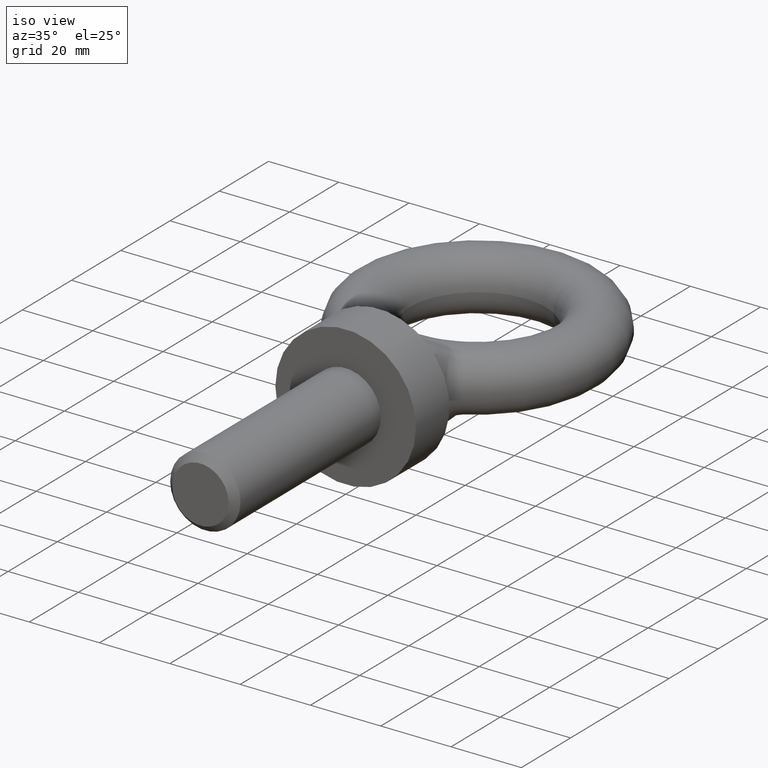
[diagram: clean part render]
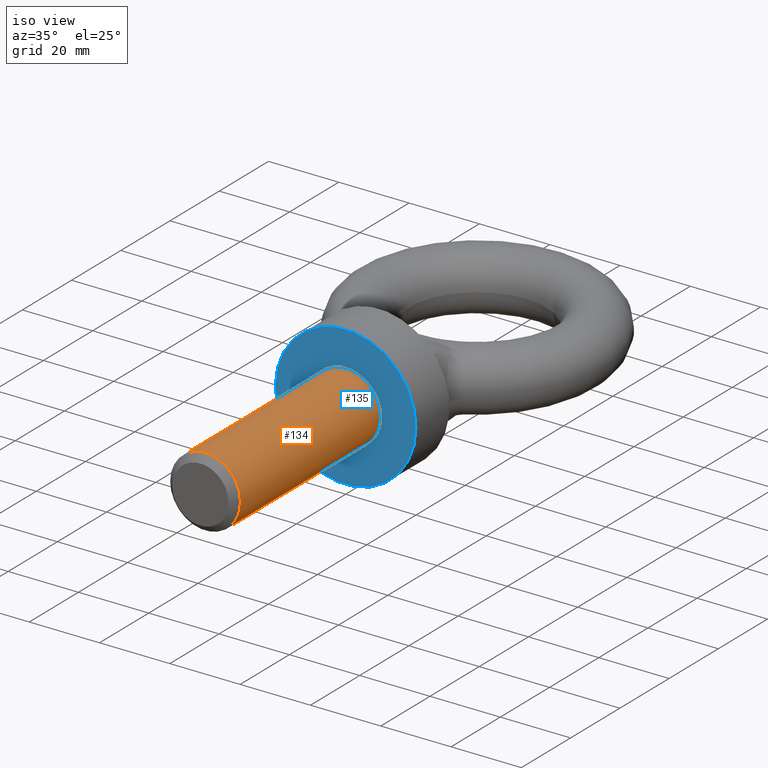
[diagram: same view with the hole feature highlighted: cylindrical wall and planar end face, labeled with their STEP entity ids]
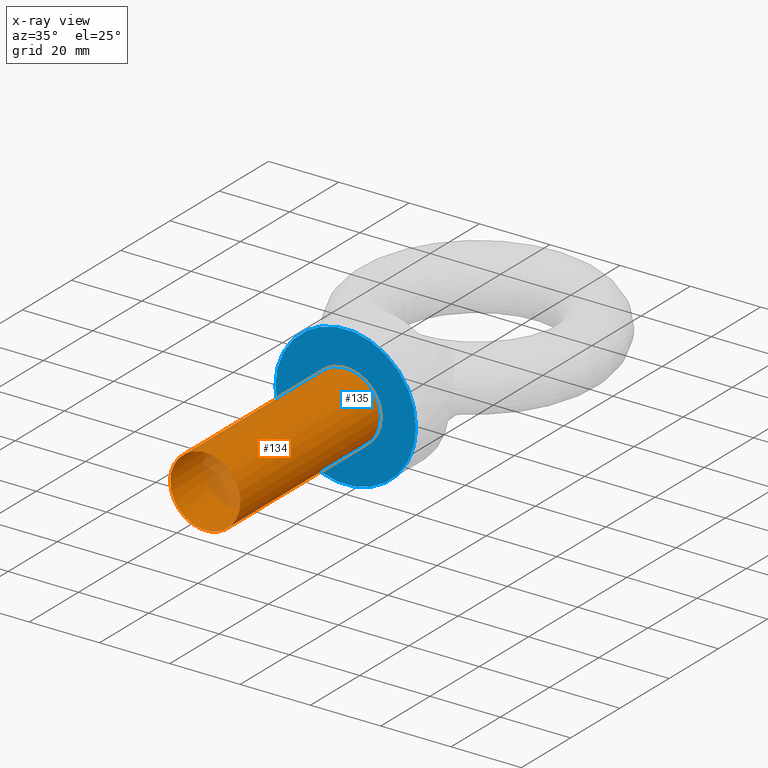
[diagram: x-ray of the same camera — body ghosted, the hole faces saturated]
A machine part, iso view. The highlighted faces form one hole feature of diameter 20 mm: the cylindrical wall (entity #134, orange) and its adjacent planar end face (entity #135, blue) — they share a circular edge in the B-rep.
The next image is the same camera in x-ray (body ghosted, the hole faces saturated) — the bore reads through the body.
Wall:
#82=FACE_BOUND('',#208,.T.);
#83=FACE_BOUND('',#209,.T.);
#112=CYLINDRICAL_SURFACE('',#595,10.);
#134=ADVANCED_FACE('',(#82,#83),#112,.T.);
#208=EDGE_LOOP('',(#315));
#209=EDGE_LOOP('',(#316));
#315=ORIENTED_EDGE('',*,*,#499,.T.);
#316=ORIENTED_EDGE('',*,*,#500,.F.);
#447=VERTEX_POINT('',#1017);
#448=VERTEX_POINT('',#1019);
#499=EDGE_CURVE('',#447,#447,#544,.T.);
#500=EDGE_CURVE('',#448,#448,#545,.T.);
#544=CIRCLE('',#593,10.);
#545=CIRCLE('',#594,9.99999999999999);
#593=AXIS2_PLACEMENT_3D('',#1016,#674,#675);
#594=AXIS2_PLACEMENT_3D('',#1018,#676,#677);
#595=AXIS2_PLACEMENT_3D('',#1020,#678,#679);
#674=DIRECTION('',(-3.2499060219322E-18,1.,0.));
#675=DIRECTION('',(-1.,0.,0.));
#676=DIRECTION('',(-3.24990602193221E-18,1.,0.));
#677=DIRECTION('',(-1.,-3.24990602193221E-18,0.));
#678=DIRECTION('',(-3.24990602193221E-18,1.,0.));
#679=DIRECTION('',(-1.,0.,0.));
#1016=CARTESIAN_POINT('',(2.68117246809407E-16,-57.,0.));
#1017=CARTESIAN_POINT('',(-10.,-57.,0.));
#1018=CARTESIAN_POINT('',(8.28726035592713E-17,0.,0.));
#1019=CARTESIAN_POINT('',(-9.99999999999999,-3.24990602193221E-17,0.));
#1020=CARTESIAN_POINT('',(2.74617058853272E-16,-59.,0.));
End face:
#84=FACE_BOUND('',#210,.T.);
#85=FACE_BOUND('',#211,.T.);
#135=ADVANCED_FACE('',(#84,#85),#164,.F.);
#164=PLANE('',#597);
#210=EDGE_LOOP('',(#317));
#211=EDGE_LOOP('',(#318));
#317=ORIENTED_EDGE('',*,*,#501,.F.);
#318=ORIENTED_EDGE('',*,*,#500,.T.);
#448=VERTEX_POINT('',#1019);
#449=VERTEX_POINT('',#1022);
#500=EDGE_CURVE('',#448,#448,#545,.T.);
#501=EDGE_CURVE('',#449,#449,#546,.T.);
#545=CIRCLE('',#594,9.99999999999999);
#546=CIRCLE('',#596,20.);
#594=AXIS2_PLACEMENT_3D('',#1018,#676,#677);
#596=AXIS2_PLACEMENT_3D('',#1021,#680,#681);
#597=AXIS2_PLACEMENT_3D('',#1023,#682,#683);
#676=DIRECTION('',(-3.24990602193221E-18,1.,0.));
#677=DIRECTION('',(-1.,-3.24990602193221E-18,0.));
#680=DIRECTION('',(-3.24990602193221E-18,1.,0.));
#681=DIRECTION('',(-1.,-3.24990602193221E-18,0.));
#682=DIRECTION('',(-3.24990602193221E-18,1.,0.));
#683=DIRECTION('',(-1.,-3.24990602193221E-18,0.));
#1018=CARTESIAN_POINT('',(8.28726035592713E-17,0.,0.));
#1019=CARTESIAN_POINT('',(-9.99999999999999,-3.24990602193221E-17,0.));
#1021=CARTESIAN_POINT('',(8.28726035592713E-17,0.,0.));
#1022=CARTESIAN_POINT('',(-20.,-6.49981204386442E-17,0.));
#1023=CARTESIAN_POINT('',(9.99999999999999,7.79770889336119E-16,0.));